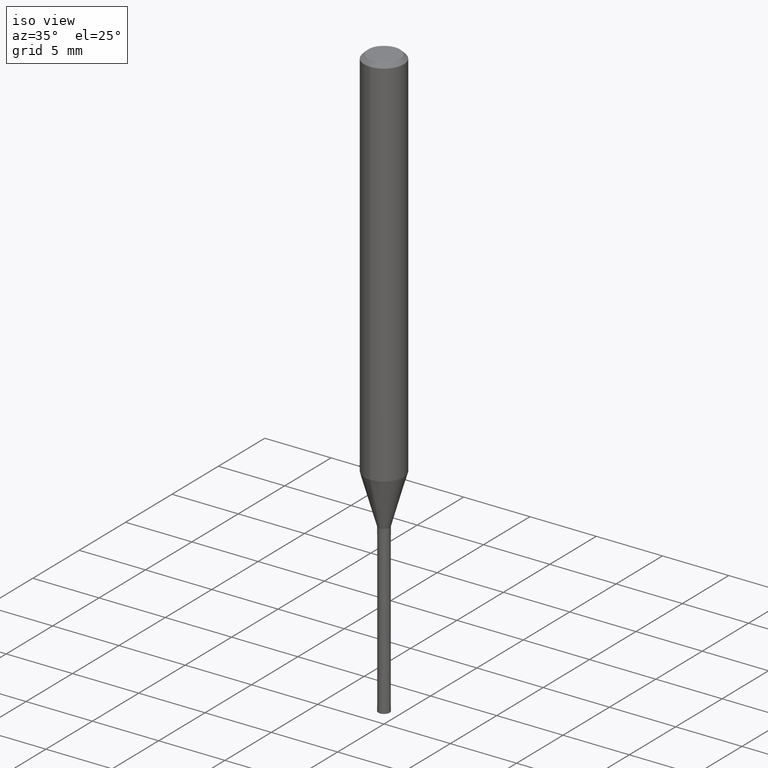
[diagram: clean part render]
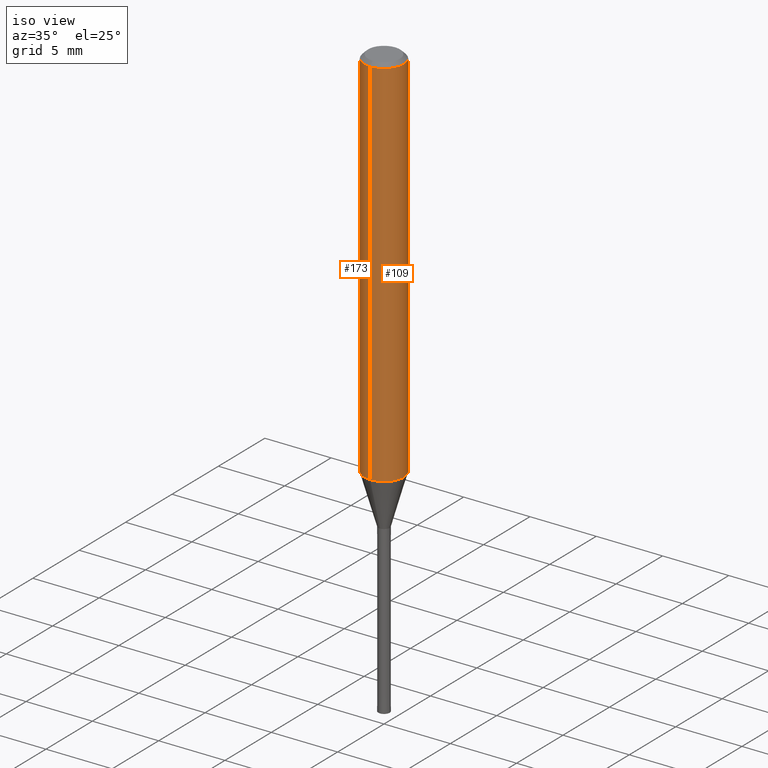
[diagram: same view with one multi-face feature highlighted, each face labeled with its STEP entity id]
A machine part, iso view. The highlighted faces form ONE feature: a constant-radius fillet chain: 2 tangent blend faces with common blend radius 1.5 mm. The faces share edges in the B-rep.
Their STEP definitions:
[1] entity #173 (Cylinder):
#93=VERTEX_POINT('',#228);
#133=VERTEX_POINT('',#276);
#147=EDGE_CURVE('',#93,#179,#291,.T.);
#149=VERTEX_POINT('',#293);
#157=EDGE_CURVE('',#133,#149,#301,.T.);
#167=EDGE_CURVE('',#149,#179,#312,.T.);
#173=ADVANCED_FACE('',(#318),#319,.T.);
#179=VERTEX_POINT('',#326);
#187=EDGE_CURVE('',#93,#133,#334,.T.);
#228=CARTESIAN_POINT('',(1.83690953073357E-016,-1.5,-28.451));
#276=CARTESIAN_POINT('',(1.83690953073357E-016,-1.5,-0.300000000000001));
#291=CIRCLE('',#445,1.5);
#293=CARTESIAN_POINT('',(0.0,1.5,-0.300000000000001));
#301=CIRCLE('',#460,1.5);
#312=LINE('',#472,#473);
#318=FACE_OUTER_BOUND('',#481,.T.);
#319=CYLINDRICAL_SURFACE('',#482,1.5);
#326=CARTESIAN_POINT('',(0.0,1.5,-28.451));
#334=LINE('',#505,#506);
#445=AXIS2_PLACEMENT_3D('',#622,#623,#624);
#460=AXIS2_PLACEMENT_3D('',#632,#633,#634);
#472=CARTESIAN_POINT('',(-1.83690953073357E-016,1.5,-14.3755));
#473=VECTOR('',#643,1.0);
#481=EDGE_LOOP('',(#651,#652,#653,#654));
#482=AXIS2_PLACEMENT_3D('',#655,#656,#657);
#505=CARTESIAN_POINT('',(1.83690953073357E-016,-1.5,-14.3755));
#506=VECTOR('',#672,1.0);
#622=CARTESIAN_POINT('',(0.0,0.0,-28.451));
#623=DIRECTION('',(0.0,0.0,-1.0));
#624=DIRECTION('',(0.0,1.0,0.0));
#632=CARTESIAN_POINT('',(0.0,0.0,-0.300000000000001));
#633=DIRECTION('',(0.0,0.0,-1.0));
#634=DIRECTION('',(0.0,1.0,0.0));
#643=DIRECTION('',(0.0,0.0,-1.0));
#651=ORIENTED_EDGE('',*,*,#167,.T.);
#652=ORIENTED_EDGE('',*,*,#147,.F.);
#653=ORIENTED_EDGE('',*,*,#187,.T.);
#654=ORIENTED_EDGE('',*,*,#157,.T.);
#655=CARTESIAN_POINT('',(0.0,0.0,-14.3755));
#656=DIRECTION('',(-0.0,-0.0,1.0));
#657=DIRECTION('',(0.0,1.0,0.0));
#672=DIRECTION('',(-0.0,-0.0,1.0));
[2] entity #109 (Cylinder):
#93=VERTEX_POINT('',#228);
#109=ADVANCED_FACE('',(#246),#247,.T.);
#133=VERTEX_POINT('',#276);
#137=EDGE_CURVE('',#149,#133,#280,.T.);
#149=VERTEX_POINT('',#293);
#153=EDGE_CURVE('',#179,#93,#297,.T.);
#167=EDGE_CURVE('',#149,#179,#312,.T.);
#179=VERTEX_POINT('',#326);
#187=EDGE_CURVE('',#93,#133,#334,.T.);
#228=CARTESIAN_POINT('',(1.83690953073357E-016,-1.5,-28.451));
#246=FACE_OUTER_BOUND('',#392,.T.);
#247=CYLINDRICAL_SURFACE('',#393,1.5);
#276=CARTESIAN_POINT('',(1.83690953073357E-016,-1.5,-0.300000000000001));
#280=CIRCLE('',#431,1.5);
#293=CARTESIAN_POINT('',(0.0,1.5,-0.300000000000001));
#297=CIRCLE('',#453,1.5);
#312=LINE('',#472,#473);
#326=CARTESIAN_POINT('',(0.0,1.5,-28.451));
#334=LINE('',#505,#506);
#392=EDGE_LOOP('',(#561,#562,#563,#564));
#393=AXIS2_PLACEMENT_3D('',#565,#566,#567);
#431=AXIS2_PLACEMENT_3D('',#612,#613,#614);
#453=AXIS2_PLACEMENT_3D('',#628,#629,#630);
#472=CARTESIAN_POINT('',(-1.83690953073357E-016,1.5,-14.3755));
#473=VECTOR('',#643,1.0);
#505=CARTESIAN_POINT('',(1.83690953073357E-016,-1.5,-14.3755));
#506=VECTOR('',#672,1.0);
#561=ORIENTED_EDGE('',*,*,#167,.F.);
#562=ORIENTED_EDGE('',*,*,#137,.T.);
#563=ORIENTED_EDGE('',*,*,#187,.F.);
#564=ORIENTED_EDGE('',*,*,#153,.F.);
#565=CARTESIAN_POINT('',(0.0,0.0,-14.3755));
#566=DIRECTION('',(-0.0,-0.0,1.0));
#567=DIRECTION('',(0.0,1.0,0.0));
#612=CARTESIAN_POINT('',(0.0,0.0,-0.300000000000001));
#613=DIRECTION('',(0.0,0.0,-1.0));
#614=DIRECTION('',(0.0,1.0,0.0));
#628=CARTESIAN_POINT('',(0.0,0.0,-28.451));
#629=DIRECTION('',(0.0,0.0,-1.0));
#630=DIRECTION('',(0.0,1.0,0.0));
#643=DIRECTION('',(0.0,0.0,-1.0));
#672=DIRECTION('',(-0.0,-0.0,1.0));